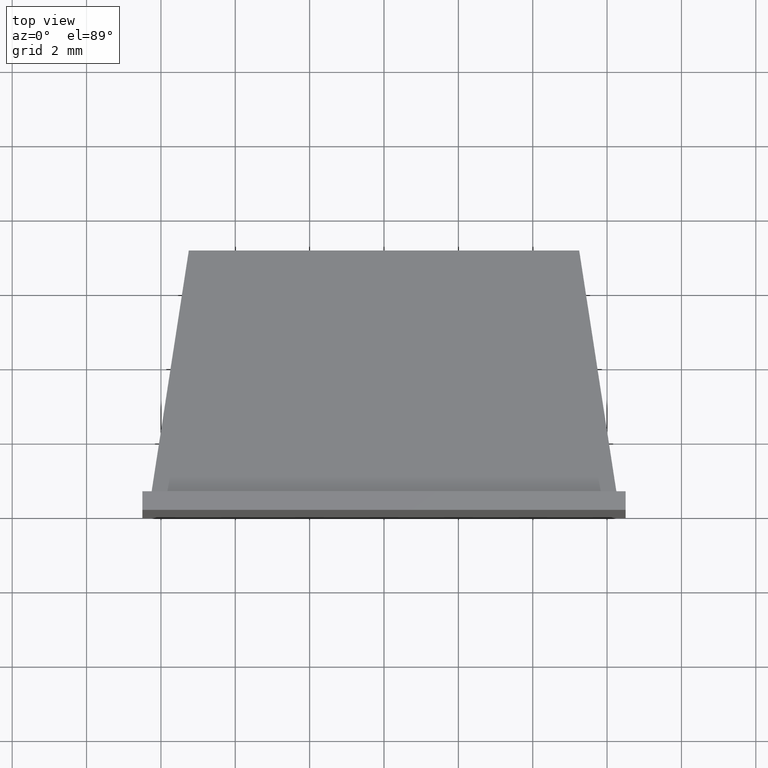
[diagram: clean part render]
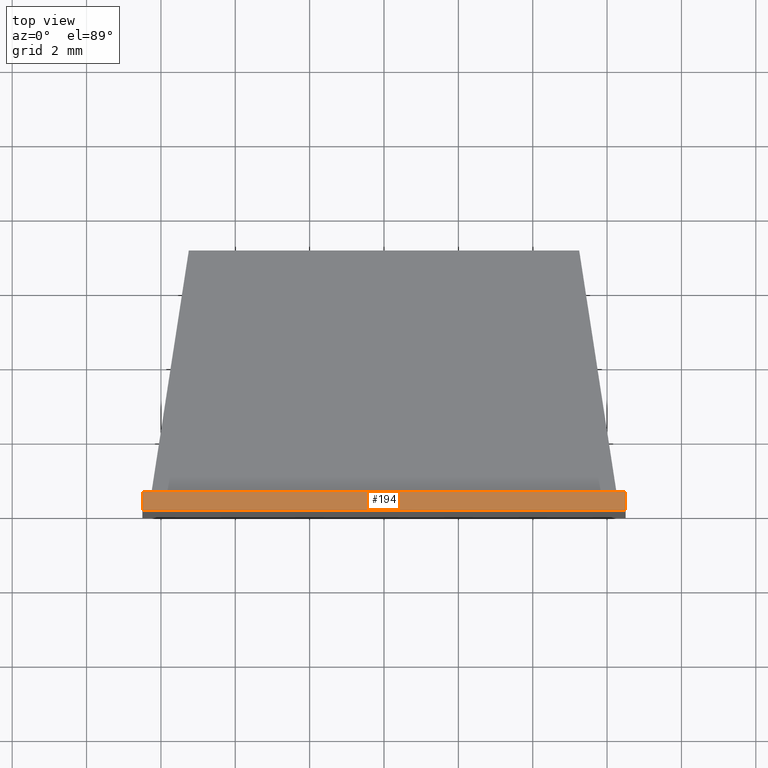
[diagram: same view with one face highlighted and labeled with its STEP entity id]
A machine part, top view. The second image highlights one B-rep face of the part: STEP entity #194.
In plain terms, the highlighted planar face has unit normal (0, 0, 1).
Its self-contained STEP definition (entity closure, byte-faithful):
#24=FACE_OUTER_BOUND('',#35,.T.);
#35=EDGE_LOOP('',(#159,#160,#161,#162));
#52=LINE('',#289,#76);
#60=LINE('',#304,#84);
#61=LINE('',#306,#85);
#62=LINE('',#307,#86);
#76=VECTOR('',#237,0.5);
#84=VECTOR('',#249,0.5);
#85=VECTOR('',#252,13.);
#86=VECTOR('',#253,13.);
#95=VERTEX_POINT('',#285);
#97=VERTEX_POINT('',#288);
#101=VERTEX_POINT('',#300);
#102=VERTEX_POINT('',#302);
#116=EDGE_CURVE('',#95,#97,#52,.T.);
#124=EDGE_CURVE('',#101,#102,#60,.T.);
#125=EDGE_CURVE('',#101,#95,#61,.T.);
#126=EDGE_CURVE('',#97,#102,#62,.T.);
#159=ORIENTED_EDGE('',*,*,#125,.F.);
#160=ORIENTED_EDGE('',*,*,#124,.T.);
#161=ORIENTED_EDGE('',*,*,#126,.F.);
#162=ORIENTED_EDGE('',*,*,#116,.F.);
#183=PLANE('',#207);
#194=ADVANCED_FACE('',(#24),#183,.T.);
#207=AXIS2_PLACEMENT_3D('',#305,#250,#251);
#237=DIRECTION('',(0.,1.,0.));
#249=DIRECTION('',(0.,1.,0.));
#250=DIRECTION('center_axis',(0.,0.,1.));
#251=DIRECTION('ref_axis',(1.,0.,0.));
#252=DIRECTION('',(-1.,0.,0.));
#253=DIRECTION('',(1.,0.,0.));
#285=CARTESIAN_POINT('',(-6.5,0.,6.5));
#288=CARTESIAN_POINT('',(-6.5,0.5,6.5));
#289=CARTESIAN_POINT('',(-6.5,0.,6.5));
#300=CARTESIAN_POINT('',(6.5,0.,6.5));
#302=CARTESIAN_POINT('',(6.5,0.5,6.5));
#304=CARTESIAN_POINT('',(6.5,0.,6.5));
#305=CARTESIAN_POINT('Origin',(-6.5,0.,6.5));
#306=CARTESIAN_POINT('',(6.5,0.,6.5));
#307=CARTESIAN_POINT('',(6.5,0.5,6.5));